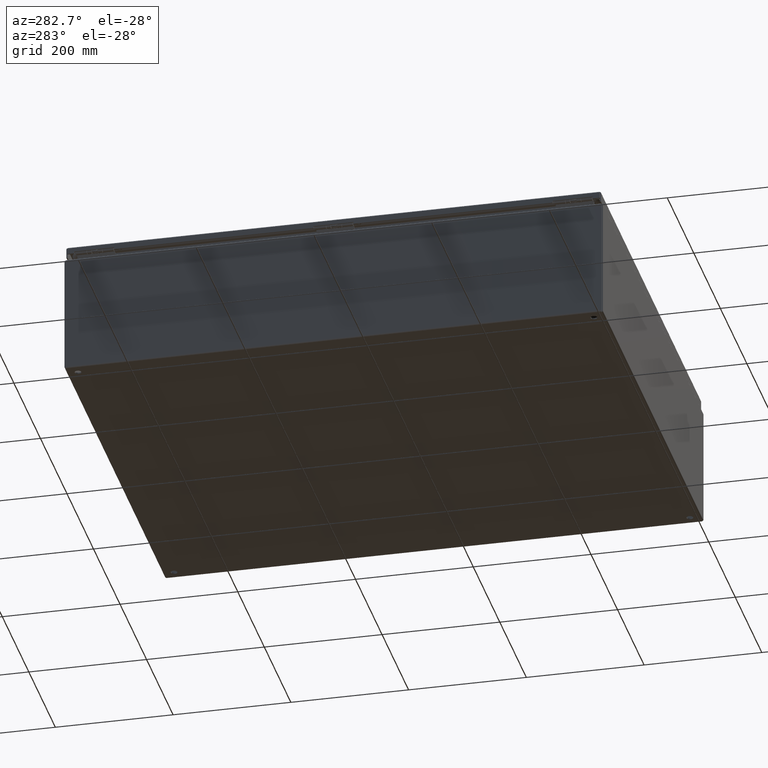
[diagram: clean part render]
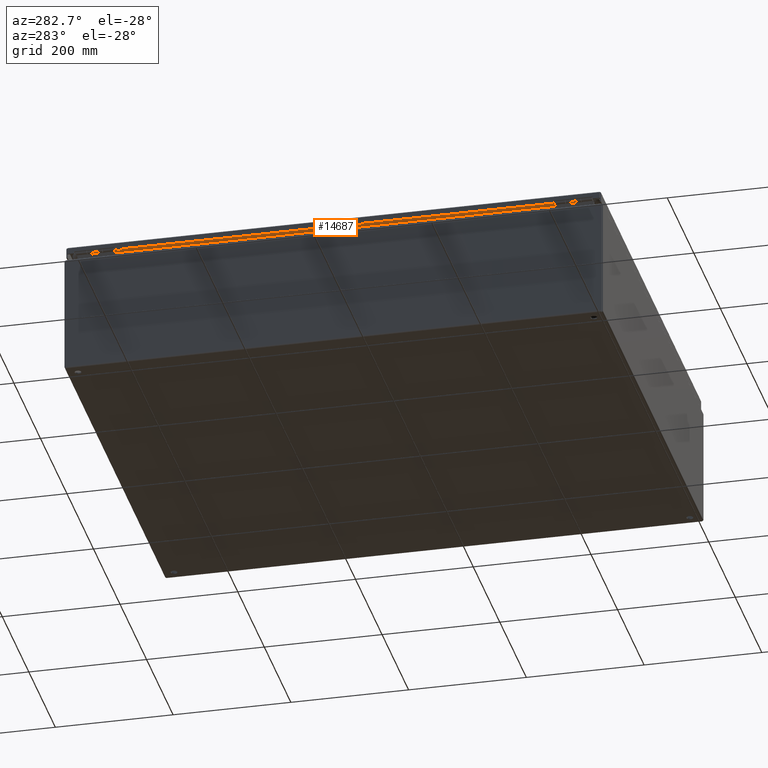
[diagram: same view with one face highlighted and labeled with its STEP entity id]
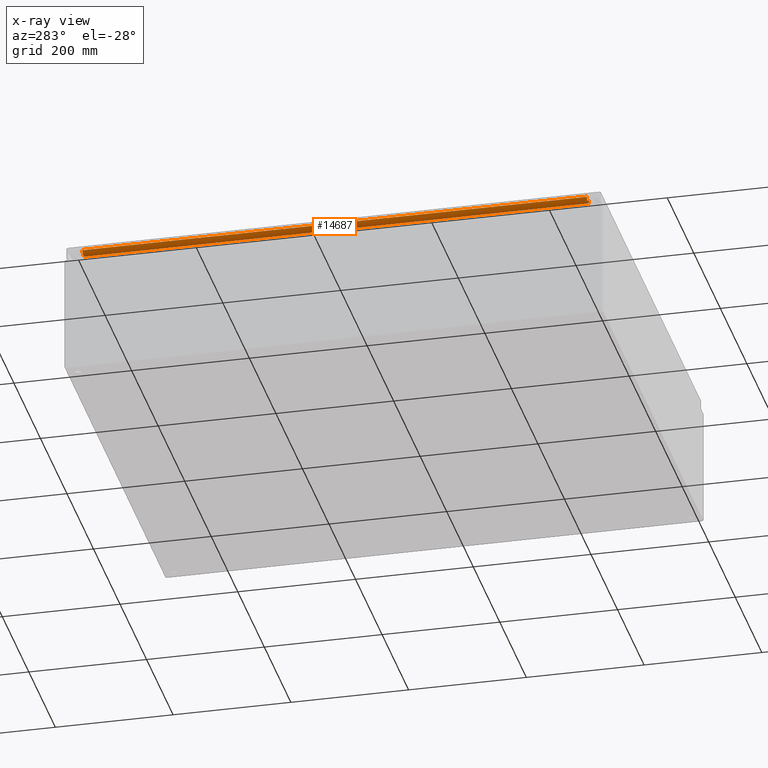
[diagram: x-ray of the same camera — body ghosted, the highlighted face saturated]
A machine part, auxiliary view. The second image highlights one B-rep face of the part: STEP entity #14687.
The next image is the same camera in x-ray: the body ghosted, the highlighted face saturated — about 0% of this face is hidden behind the body in this view.
In plain terms, the highlighted face is a freeform B-spline surface patch.
Its self-contained STEP definition (entity closure, byte-faithful):
#448=B_SPLINE_SURFACE_WITH_KNOTS('',4,1,((#32716,#32717),(#32718,#32719),
(#32720,#32721),(#32722,#32723),(#32724,#32725),(#32726,#32727),(#32728,
#32729)),.UNSPECIFIED.,.F.,.F.,.F.,(5,1,1,5),(2,2),(0.,0.375,0.625,1.),
(7.105427357601E-15,85.66912),.UNSPECIFIED.);
#2529=FACE_OUTER_BOUND('',#3638,.T.);
#3638=EDGE_LOOP('',(#13144,#13145,#13146,#13147));
#3911=B_SPLINE_CURVE_WITH_KNOTS('',4,(#32708,#32709,#32710,#32711,#32712,
#32713,#32714),.UNSPECIFIED.,.F.,.F.,(5,1,1,5),(-1.,-0.625,-0.375,0.),
 .UNSPECIFIED.);
#3912=B_SPLINE_CURVE_WITH_KNOTS('',4,(#32733,#32734,#32735,#32736,#32737,
#32738,#32739),.UNSPECIFIED.,.F.,.F.,(5,1,1,5),(-1.,-0.625,-0.375,0.),
 .UNSPECIFIED.);
#4991=LINE('',#32731,#6072);
#4992=LINE('',#32740,#6073);
#6072=VECTOR('',#19945,33.728);
#6073=VECTOR('',#19946,33.728);
#7328=VERTEX_POINT('',#32705);
#7329=VERTEX_POINT('',#32707);
#7330=VERTEX_POINT('',#32730);
#7331=VERTEX_POINT('',#32732);
#9270=EDGE_CURVE('',#7329,#7328,#3911,.T.);
#9272=EDGE_CURVE('',#7330,#7328,#4991,.T.);
#9273=EDGE_CURVE('',#7331,#7330,#3912,.T.);
#9274=EDGE_CURVE('',#7331,#7329,#4992,.T.);
#13144=ORIENTED_EDGE('',*,*,#9270,.T.);
#13145=ORIENTED_EDGE('',*,*,#9272,.F.);
#13146=ORIENTED_EDGE('',*,*,#9273,.F.);
#13147=ORIENTED_EDGE('',*,*,#9274,.T.);
#14687=ADVANCED_FACE('',(#2529),#448,.T.);
#19945=DIRECTION('',(-1.,0.,8.29403565438865E-17));
#19946=DIRECTION('',(-1.,0.,8.29403565438865E-17));
#32705=CARTESIAN_POINT('',(-34.228,8.74191357972564E-17,14.615875));
#32707=CARTESIAN_POINT('',(-34.228,-8.74191357972564E-17,14.112125));
#32708=CARTESIAN_POINT('Ctrl Pts',(-34.228,-9.23727586939937E-17,14.112125));
#32709=CARTESIAN_POINT('Ctrl Pts',(-34.228,0.0429038525715621,14.0098154985989));
#32710=CARTESIAN_POINT('Ctrl Pts',(-34.228,0.170554382682061,13.9695200421494));
#32711=CARTESIAN_POINT('Ctrl Pts',(-34.228,0.465678460676752,14.364021467309));
#32712=CARTESIAN_POINT('Ctrl Pts',(-34.228,0.169789729279709,14.7584391993837));
#32713=CARTESIAN_POINT('Ctrl Pts',(-34.228,0.0436577006648877,14.7182169662018));
#32714=CARTESIAN_POINT('Ctrl Pts',(-34.228,1.57803462768906E-16,14.615875));
#32716=CARTESIAN_POINT('Ctrl Pts',(-0.499999999999998,1.57803462768906E-16,
14.615875));
#32717=CARTESIAN_POINT('Ctrl Pts',(-34.228,1.57803462768906E-16,14.615875));
#32718=CARTESIAN_POINT('Ctrl Pts',(-0.499999999999998,0.0436577006648877,
14.7182169662018));
#32719=CARTESIAN_POINT('Ctrl Pts',(-34.228,0.0436577006648877,14.7182169662018));
#32720=CARTESIAN_POINT('Ctrl Pts',(-0.499999999999998,0.169789729279709,
14.7584391993837));
#32721=CARTESIAN_POINT('Ctrl Pts',(-34.228,0.169789729279709,14.7584391993837));
#32722=CARTESIAN_POINT('Ctrl Pts',(-0.499999999999998,0.465678460676752,
14.364021467309));
#32723=CARTESIAN_POINT('Ctrl Pts',(-34.228,0.465678460676752,14.364021467309));
#32724=CARTESIAN_POINT('Ctrl Pts',(-0.499999999999998,0.170554382682061,
13.9695200421494));
#32725=CARTESIAN_POINT('Ctrl Pts',(-34.228,0.170554382682061,13.9695200421494));
#32726=CARTESIAN_POINT('Ctrl Pts',(-0.499999999999998,0.0429038525715621,
14.0098154985989));
#32727=CARTESIAN_POINT('Ctrl Pts',(-34.228,0.0429038525715621,14.0098154985989));
#32728=CARTESIAN_POINT('Ctrl Pts',(-0.499999999999998,-9.23727586939937E-17,
14.112125));
#32729=CARTESIAN_POINT('Ctrl Pts',(-34.228,-9.23727586939937E-17,14.112125));
#32730=CARTESIAN_POINT('',(-0.499999999999995,8.74191357972564E-17,14.615875));
#32731=CARTESIAN_POINT('',(-0.499999999999996,8.74191357972564E-17,14.615875));
#32732=CARTESIAN_POINT('',(-0.499999999999996,-8.74191357972564E-17,14.112125));
#32733=CARTESIAN_POINT('Ctrl Pts',(-0.499999999999996,-9.23727586939937E-17,
14.112125));
#32734=CARTESIAN_POINT('Ctrl Pts',(-0.499999999999996,0.0429038525715621,
14.0098154985989));
#32735=CARTESIAN_POINT('Ctrl Pts',(-0.499999999999996,0.170554382682061,
13.9695200421494));
#32736=CARTESIAN_POINT('Ctrl Pts',(-0.499999999999996,0.465678460676752,
14.364021467309));
#32737=CARTESIAN_POINT('Ctrl Pts',(-0.499999999999996,0.169789729279709,
14.7584391993837));
#32738=CARTESIAN_POINT('Ctrl Pts',(-0.499999999999996,0.0436577006648877,
14.7182169662018));
#32739=CARTESIAN_POINT('Ctrl Pts',(-0.499999999999996,1.57803462768906E-16,
14.615875));
#32740=CARTESIAN_POINT('',(-0.499999999999996,-8.74191357972564E-17,14.112125));